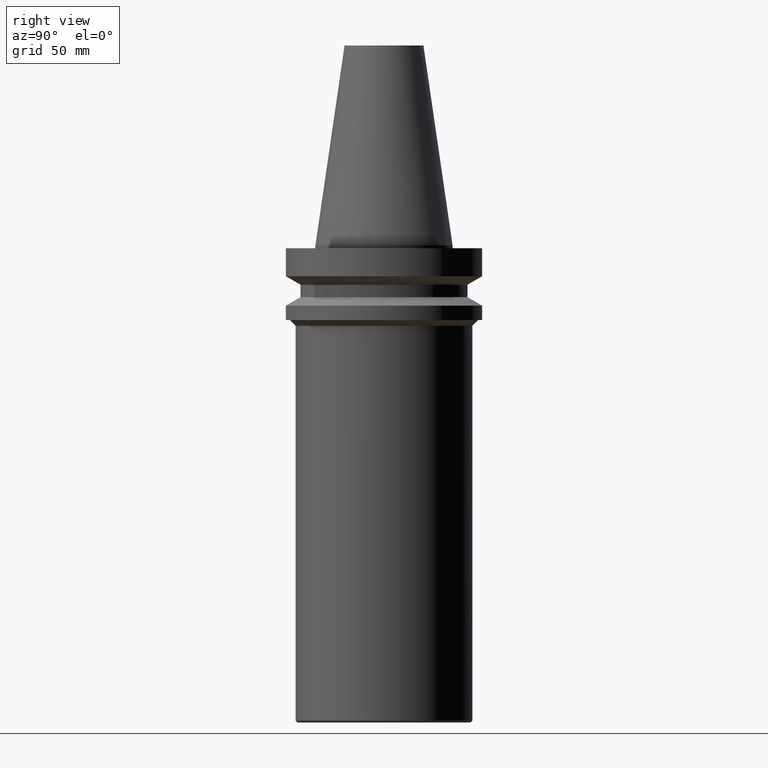
[diagram: clean part render]
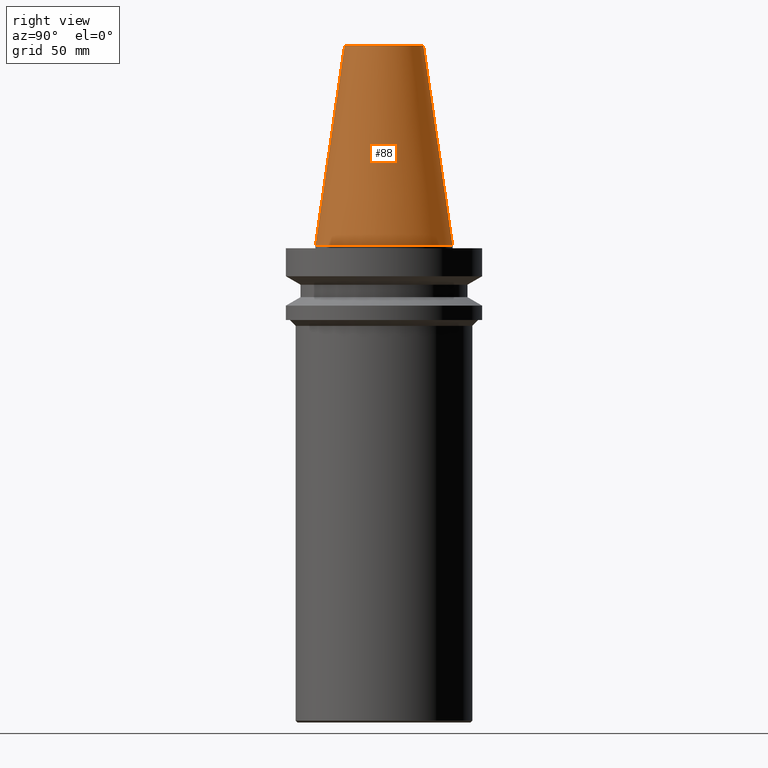
[diagram: same view with one face highlighted and labeled with its STEP entity id]
A machine part, right view. The second image highlights one B-rep face of the part: STEP entity #88.
In plain terms, the highlighted conical surface has half-angle 8.297 deg.
Its self-contained STEP definition (entity closure, byte-faithful):
#88=ADVANCED_FACE('',(#127,#128),#129,.T.);
#127=FACE_BOUND('',#167,.T.);
#128=FACE_BOUND('',#168,.T.);
#129=CONICAL_SURFACE('',#169,27.5020833333338,0.144812498238939);
#167=EDGE_LOOP('',(#233));
#168=EDGE_LOOP('',(#234));
#169=AXIS2_PLACEMENT_3D('',#235,#236,#237);
#233=ORIENTED_EDGE('',*,*,#238,.F.);
#234=ORIENTED_EDGE('',*,*,#250,.T.);
#235=CARTESIAN_POINT('',(-3.11672610383001E-015,-6.23345220766003E-015,50.9));
#236=DIRECTION('',(6.12323399573677E-017,1.22464679914735E-016,-1.0));
#237=DIRECTION('',(-1.23259516440783E-032,1.0,1.22464679914735E-016));
#238=EDGE_CURVE('',#251,#251,#252,.T.);
#250=EDGE_CURVE('',#275,#275,#276,.T.);
#251=VERTEX_POINT('',#277);
#252=CIRCLE('',#278,20.0791666666671);
#275=VERTEX_POINT('',#301);
#276=CIRCLE('',#302,34.9250000000004);
#277=CARTESIAN_POINT('',(-6.23345220766003E-015,20.0791666666671,101.8));
#278=AXIS2_PLACEMENT_3D('',#303,#304,#305);
#301=CARTESIAN_POINT('',(-4.3048386116944E-031,34.9250000000004,4.27707894602218E-015));
#302=AXIS2_PLACEMENT_3D('',#339,#340,#341);
#303=CARTESIAN_POINT('',(-6.23345220766003E-015,-1.24669044153201E-014,101.8));
#304=DIRECTION('',(-6.12323399573677E-017,-1.22464679914735E-016,1.0));
#305=DIRECTION('',(-1.23259516440783E-032,1.0,1.22464679914735E-016));
#339=CARTESIAN_POINT('',(0.0,0.0,0.0));
#340=DIRECTION('',(-6.12323399573677E-017,-1.22464679914735E-016,1.0));
#341=DIRECTION('',(-1.23259516440783E-032,1.0,1.22464679914735E-016));